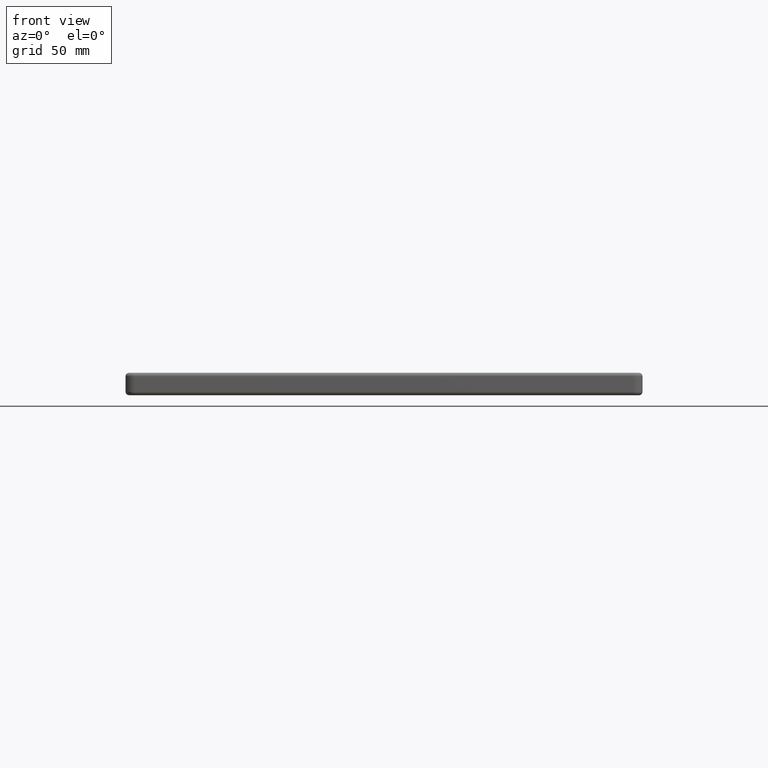
[diagram: clean part render]
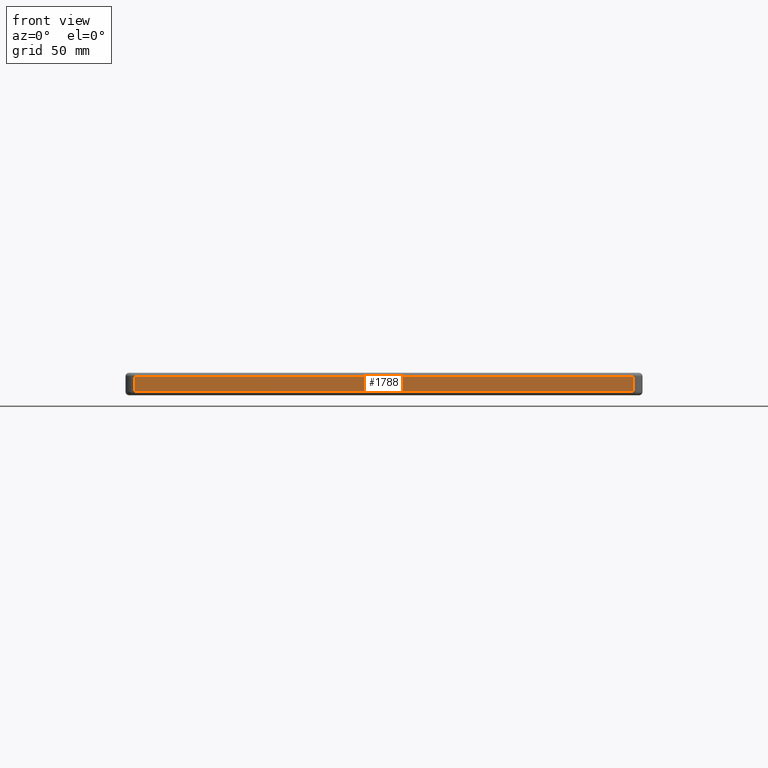
[diagram: same view with one face highlighted and labeled with its STEP entity id]
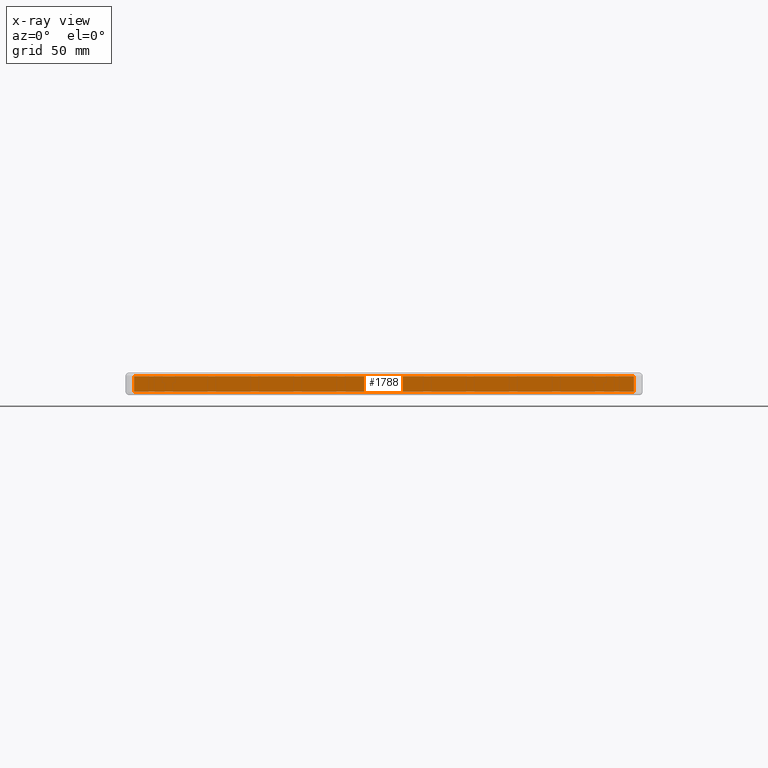
[diagram: x-ray of the same camera — body ghosted, the highlighted face saturated]
A machine part, front view. The second image highlights one B-rep face of the part: STEP entity #1788.
The next image is the same camera in x-ray: the body ghosted, the highlighted face saturated — about 0% of this face is hidden behind the body in this view.
In plain terms, the highlighted planar face has unit normal (0, -1, 0).
Its self-contained STEP definition (entity closure, byte-faithful):
#211 = VECTOR ( 'NONE', #4301, 1000.000000000000000 ) ;
#446 = LINE ( 'NONE', #6779, #706 ) ;
#706 = VECTOR ( 'NONE', #9405, 1000.000000000000000 ) ;
#1346 = CARTESIAN_POINT ( 'NONE',  ( 4.999999999999999100, 0.0000000000000000000, -2.000000000000000000 ) ) ;
#1553 = CARTESIAN_POINT ( 'NONE',  ( 294.9999999999998900, 0.0000000000000000000, -2.000000000000000000 ) ) ;
#1644 = EDGE_CURVE ( 'NONE', #10324, #9544, #8946, .T. ) ;
#1675 = LINE ( 'NONE', #9616, #9270 ) ;
#1788 = ADVANCED_FACE ( 'NONE', ( #5214 ), #3542, .T. ) ;
#2183 = DIRECTION ( 'NONE',  ( -0.0000000000000000000, -0.0000000000000000000, -1.000000000000000000 ) ) ;
#2275 = AXIS2_PLACEMENT_3D ( 'NONE', #9344, #10154, #10095 ) ;
#2522 = ORIENTED_EDGE ( 'NONE', *, *, #1644, .T. ) ;
#3281 = CARTESIAN_POINT ( 'NONE',  ( 294.9999999999998900, 0.0000000000000000000, -11.00000000000000000 ) ) ;
#3285 = VECTOR ( 'NONE', #4811, 1000.000000000000000 ) ;
#3542 = PLANE ( 'NONE',  #2275 ) ;
#4135 = EDGE_CURVE ( 'NONE', #9088, #10324, #446, .T. ) ;
#4168 = ORIENTED_EDGE ( 'NONE', *, *, #8094, .T. ) ;
#4301 = DIRECTION ( 'NONE',  ( -0.0000000000000000000, 0.0000000000000000000, 1.000000000000000000 ) ) ;
#4756 = EDGE_LOOP ( 'NONE', ( #9246, #6807, #2522, #4168 ) ) ;
#4811 = DIRECTION ( 'NONE',  ( -1.000000000000000000, -0.0000000000000000000, 0.0000000000000000000 ) ) ;
#5214 = FACE_OUTER_BOUND ( 'NONE', #4756, .T. ) ;
#6715 = CARTESIAN_POINT ( 'NONE',  ( 294.9999999999998900, 0.0000000000000000000, -13.00000000000000000 ) ) ;
#6779 = CARTESIAN_POINT ( 'NONE',  ( 0.0000000000000000000, 0.0000000000000000000, -11.00000000000000000 ) ) ;
#6807 = ORIENTED_EDGE ( 'NONE', *, *, #4135, .T. ) ;
#7035 = VERTEX_POINT ( 'NONE', #8960 ) ;
#7531 = LINE ( 'NONE', #1346, #3285 ) ;
#7787 = CARTESIAN_POINT ( 'NONE',  ( 4.999999999999999100, 0.0000000000000000000, -11.00000000000000000 ) ) ;
#8094 = EDGE_CURVE ( 'NONE', #9544, #7035, #7531, .T. ) ;
#8946 = LINE ( 'NONE', #6715, #211 ) ;
#8960 = CARTESIAN_POINT ( 'NONE',  ( 4.999999999999999100, 0.0000000000000000000, -2.000000000000000000 ) ) ;
#9088 = VERTEX_POINT ( 'NONE', #7787 ) ;
#9246 = ORIENTED_EDGE ( 'NONE', *, *, #10073, .T. ) ;
#9270 = VECTOR ( 'NONE', #2183, 1000.000000000000000 ) ;
#9344 = CARTESIAN_POINT ( 'NONE',  ( 0.0000000000000000000, 0.0000000000000000000, -13.00000000000000000 ) ) ;
#9405 = DIRECTION ( 'NONE',  ( 1.000000000000000000, 0.0000000000000000000, 0.0000000000000000000 ) ) ;
#9544 = VERTEX_POINT ( 'NONE', #1553 ) ;
#9616 = CARTESIAN_POINT ( 'NONE',  ( 4.999999999999999100, 0.0000000000000000000, -13.00000000000000000 ) ) ;
#10073 = EDGE_CURVE ( 'NONE', #7035, #9088, #1675, .T. ) ;
#10095 = DIRECTION ( 'NONE',  ( 0.0000000000000000000, -0.0000000000000000000, -1.000000000000000000 ) ) ;
#10154 = DIRECTION ( 'NONE',  ( 0.0000000000000000000, -1.000000000000000000, 0.0000000000000000000 ) ) ;
#10324 = VERTEX_POINT ( 'NONE', #3281 ) ;